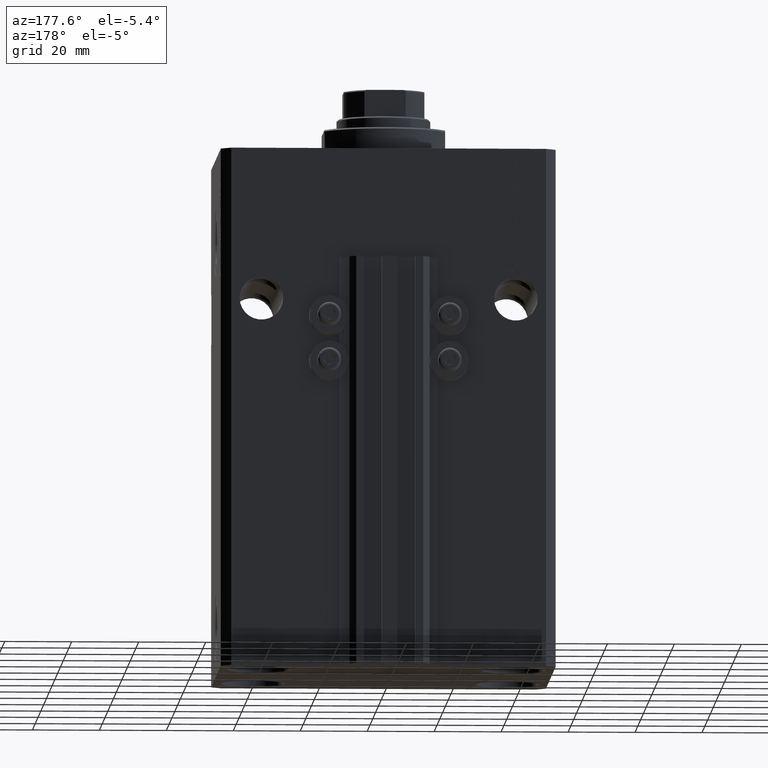
[diagram: clean part render]
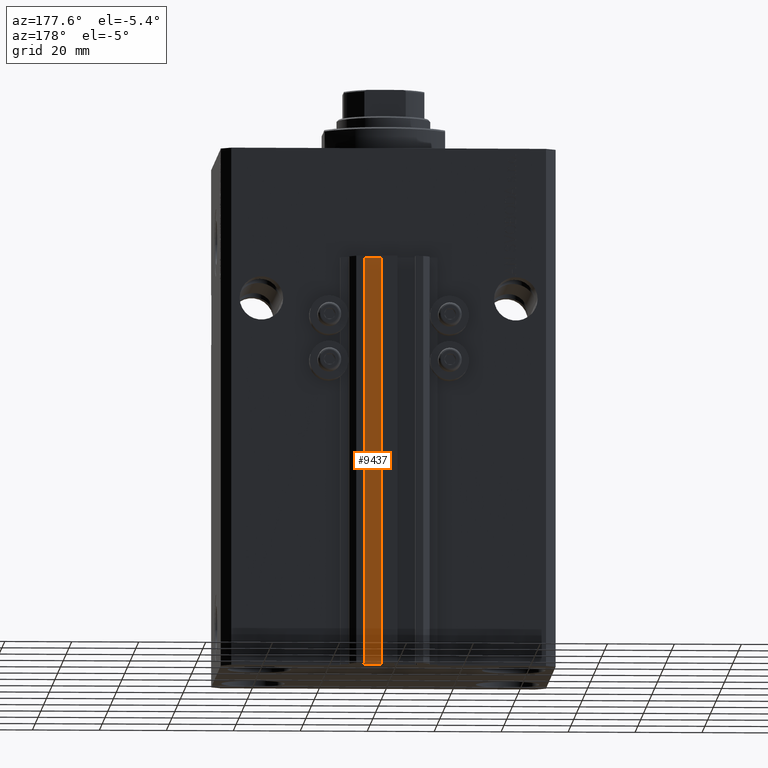
[diagram: same view with one face highlighted and labeled with its STEP entity id]
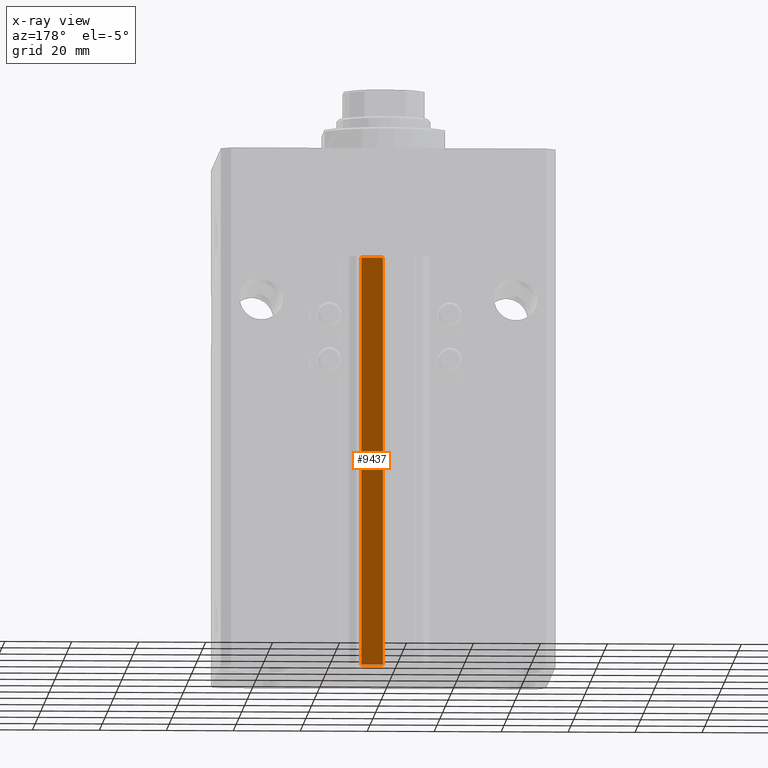
[diagram: x-ray of the same camera — body ghosted, the highlighted face saturated]
A machine part, auxiliary view. The second image highlights one B-rep face of the part: STEP entity #9437.
The next image is the same camera in x-ray: the body ghosted, the highlighted face saturated — about 0% of this face is hidden behind the body in this view.
In plain terms, the highlighted planar face has unit normal (-0, 1, 0).
Its self-contained STEP definition (entity closure, byte-faithful):
#1990 = VERTEX_POINT ( 'NONE', #36428 ) ;
#3736 = VECTOR ( 'NONE', #30744, 1000.000000000000000 ) ;
#3890 = DIRECTION ( 'NONE',  ( -1.000000000000000000, -1.084202172485504828E-15, 0.000000000000000000 ) ) ;
#7230 = VECTOR ( 'NONE', #31537, 1000.000000000000000 ) ;
#7973 = DIRECTION ( 'NONE',  ( -1.084202172485505026E-15, 1.000000000000000000, 0.000000000000000000 ) ) ;
#8008 = EDGE_CURVE ( 'NONE', #27844, #31946, #30259, .T. ) ;
#9437 = ADVANCED_FACE ( 'NONE', ( #15530 ), #34277, .T. ) ;
#10260 = EDGE_CURVE ( 'NONE', #26127, #31946, #22412, .T. ) ;
#13757 = CARTESIAN_POINT ( 'NONE',  ( 8.199999999999999289, 39.50000000000000711, -155.0000000000000000 ) ) ;
#15530 = FACE_OUTER_BOUND ( 'NONE', #36095, .T. ) ;
#15889 = CARTESIAN_POINT ( 'NONE',  ( 1.800000000000000933, 39.50000000000000000, -155.0000000000000000 ) ) ;
#16682 = LINE ( 'NONE', #13757, #7230 ) ;
#19684 = CARTESIAN_POINT ( 'NONE',  ( 8.199999999999999289, 39.50000000000000711, -155.0000000000000000 ) ) ;
#22412 = LINE ( 'NONE', #37262, #45048 ) ;
#26127 = VERTEX_POINT ( 'NONE', #42963 ) ;
#26858 = CARTESIAN_POINT ( 'NONE',  ( 1.800000000000000933, 39.50000000000000000, -155.0000000000000000 ) ) ;
#27827 = LINE ( 'NONE', #28065, #42260 ) ;
#27844 = VERTEX_POINT ( 'NONE', #26858 ) ;
#28065 = CARTESIAN_POINT ( 'NONE',  ( 8.199999999999999289, 39.50000000000000711, -155.0000000000000000 ) ) ;
#29125 = ORIENTED_EDGE ( 'NONE', *, *, #44235, .F. ) ;
#30259 = LINE ( 'NONE', #15889, #3736 ) ;
#30386 = DIRECTION ( 'NONE',  ( -1.000000000000000000, -1.084202172485505026E-15, 0.000000000000000000 ) ) ;
#30744 = DIRECTION ( 'NONE',  ( 0.000000000000000000, 0.000000000000000000, 1.000000000000000000 ) ) ;
#31079 = ORIENTED_EDGE ( 'NONE', *, *, #10260, .F. ) ;
#31537 = DIRECTION ( 'NONE',  ( -1.000000000000000000, -1.084202172485504828E-15, 0.000000000000000000 ) ) ;
#31946 = VERTEX_POINT ( 'NONE', #43938 ) ;
#34277 = PLANE ( 'NONE',  #40352 ) ;
#36095 = EDGE_LOOP ( 'NONE', ( #31079, #29125, #39313, #42223 ) ) ;
#36428 = CARTESIAN_POINT ( 'NONE',  ( 8.199999999999999289, 39.50000000000000711, -155.0000000000000000 ) ) ;
#37262 = CARTESIAN_POINT ( 'NONE',  ( 8.199999999999999289, 39.50000000000000711, -33.00000000000000000 ) ) ;
#39313 = ORIENTED_EDGE ( 'NONE', *, *, #44808, .T. ) ;
#40352 = AXIS2_PLACEMENT_3D ( 'NONE', #19684, #7973, #30386 ) ;
#42223 = ORIENTED_EDGE ( 'NONE', *, *, #8008, .T. ) ;
#42260 = VECTOR ( 'NONE', #42923, 1000.000000000000000 ) ;
#42923 = DIRECTION ( 'NONE',  ( 0.000000000000000000, 0.000000000000000000, 1.000000000000000000 ) ) ;
#42963 = CARTESIAN_POINT ( 'NONE',  ( 8.199999999999999289, 39.50000000000000711, -33.00000000000000000 ) ) ;
#43938 = CARTESIAN_POINT ( 'NONE',  ( 1.800000000000000933, 39.50000000000000000, -33.00000000000000000 ) ) ;
#44235 = EDGE_CURVE ( 'NONE', #1990, #26127, #27827, .T. ) ;
#44808 = EDGE_CURVE ( 'NONE', #1990, #27844, #16682, .T. ) ;
#45048 = VECTOR ( 'NONE', #3890, 1000.000000000000000 ) ;